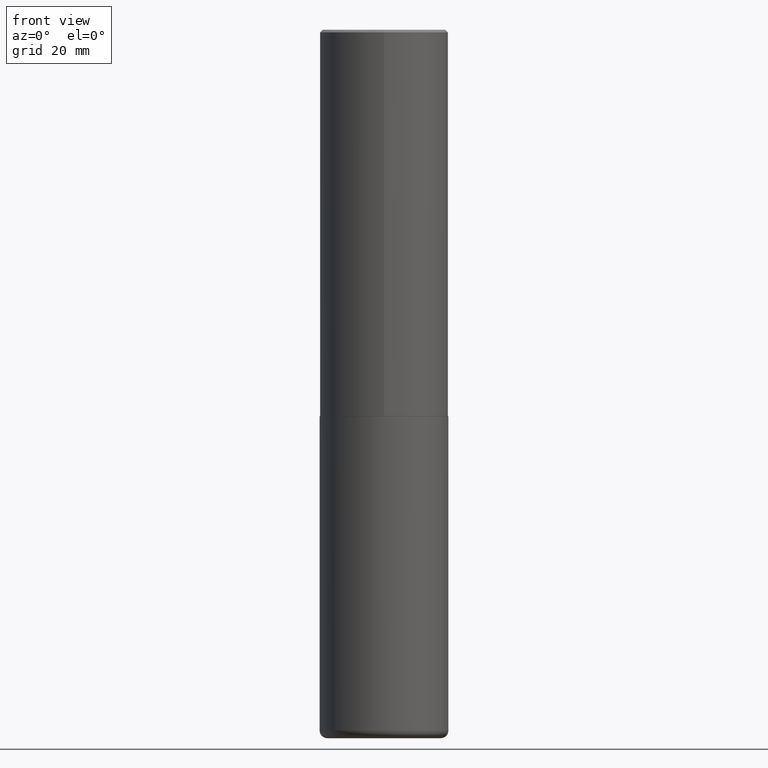
[diagram: clean part render]
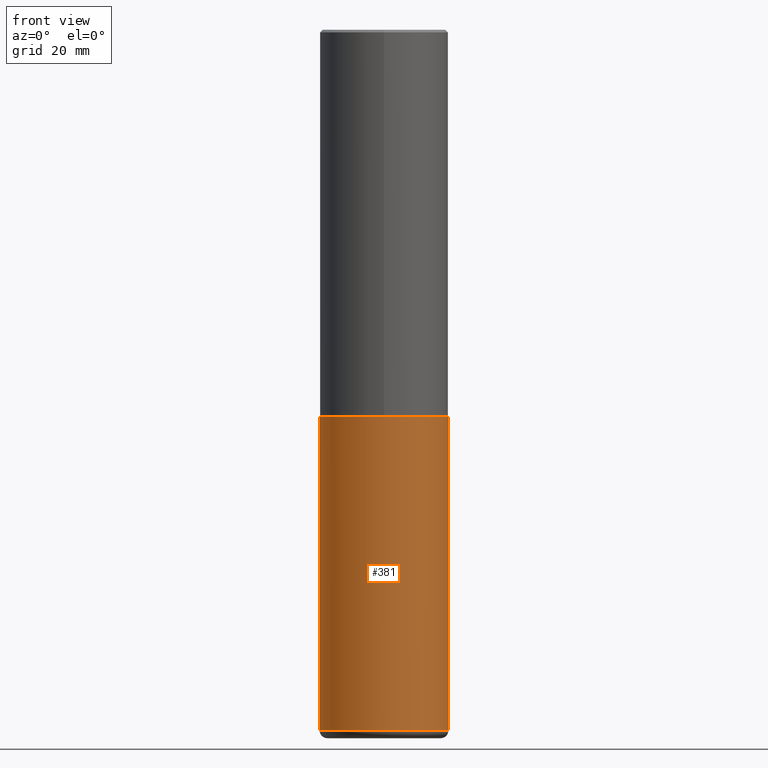
[diagram: same view with one face highlighted and labeled with its STEP entity id]
A machine part, front view. The second image highlights one B-rep face of the part: STEP entity #381.
In plain terms, the highlighted cylindrical surface (partial cylindrical patch) has radius 12.7 mm, axis along (-0, 0, 1).
Its self-contained STEP definition (entity closure, byte-faithful):
#22 = DIRECTION ( 'NONE',  ( -2.445468806185136877E-29, 3.491481338843145188E-15, 1.000000000000000000 ) ) ;
#26 = CIRCLE ( 'NONE', #255, 0.5000000000000001110 ) ;
#31 = CARTESIAN_POINT ( 'NONE',  ( -0.5000000000000002220, -1.544094480450621205E-14, -5.439999999999999503 ) ) ;
#35 = ORIENTED_EDGE ( 'NONE', *, *, #114, .F. ) ;
#55 = EDGE_CURVE ( 'NONE', #374, #196, #26, .T. ) ;
#61 = LINE ( 'NONE', #348, #68 ) ;
#63 = DIRECTION ( 'NONE',  ( -2.445468806185136877E-29, 3.491481338843145188E-15, 1.000000000000000000 ) ) ;
#68 = VECTOR ( 'NONE', #63, 39.37007874015748143 ) ;
#70 = ORIENTED_EDGE ( 'NONE', *, *, #282, .F. ) ;
#77 = LINE ( 'NONE', #232, #106 ) ;
#106 = VECTOR ( 'NONE', #22, 39.37007874015748143 ) ;
#114 = EDGE_CURVE ( 'NONE', #374, #199, #77, .T. ) ;
#130 = CARTESIAN_POINT ( 'NONE',  ( 0.000000000000000000, 0.000000000000000000, 0.000000000000000000 ) ) ;
#158 = DIRECTION ( 'NONE',  ( -2.445468806185136597E-29, 3.491481338843145583E-15, 1.000000000000000000 ) ) ;
#160 = CYLINDRICAL_SURFACE ( 'NONE', #227, 0.5000000000000000000 ) ;
#176 = CARTESIAN_POINT ( 'NONE',  ( 0.5000000000000002220, -2.248513982214985265E-14, -5.439999999999999503 ) ) ;
#190 = CARTESIAN_POINT ( 'NONE',  ( 0.5000000000000000000, -1.396592535537256813E-14, -2.999999999999999556 ) ) ;
#196 = VERTEX_POINT ( 'NONE', #176 ) ;
#199 = VERTEX_POINT ( 'NONE', #303 ) ;
#218 = CARTESIAN_POINT ( 'NONE',  ( 7.336406418555408669E-29, -1.047444401652943478E-14, -2.999999999999999556 ) ) ;
#223 = DIRECTION ( 'NONE',  ( 1.000000000000000000, -6.982962677686266711E-15, 4.876176775795935793E-29 ) ) ;
#224 = ORIENTED_EDGE ( 'NONE', *, *, #55, .T. ) ;
#227 = AXIS2_PLACEMENT_3D ( 'NONE', #130, #284, #223 ) ;
#232 = CARTESIAN_POINT ( 'NONE',  ( -0.5000000000000000000, 3.552713678800500929E-15, -2.459467545127452891E-29 ) ) ;
#247 = EDGE_LOOP ( 'NONE', ( #35, #224, #383, #70 ) ) ;
#253 = FACE_OUTER_BOUND ( 'NONE', #247, .T. ) ;
#255 = AXIS2_PLACEMENT_3D ( 'NONE', #371, #369, #361 ) ;
#273 = DIRECTION ( 'NONE',  ( 1.000000000000000000, -6.982962677686266711E-15, 0.000000000000000000 ) ) ;
#282 = EDGE_CURVE ( 'NONE', #199, #417, #401, .T. ) ;
#284 = DIRECTION ( 'NONE',  ( -2.445468806185136597E-29, 3.491481338843145583E-15, 1.000000000000000000 ) ) ;
#303 = CARTESIAN_POINT ( 'NONE',  ( -0.5000000000000000000, -1.118133757111757295E-14, -2.999999999999999556 ) ) ;
#348 = CARTESIAN_POINT ( 'NONE',  ( 0.5000000000000000000, -3.491481338843133355E-15, 2.438088387897967896E-29 ) ) ;
#361 = DIRECTION ( 'NONE',  ( 1.000000000000000000, -6.982962677686269077E-15, 0.000000000000000000 ) ) ;
#366 = EDGE_CURVE ( 'NONE', #196, #417, #61, .T. ) ;
#369 = DIRECTION ( 'NONE',  ( -2.445468806185136597E-29, 3.491481338843145583E-15, 1.000000000000000000 ) ) ;
#371 = CARTESIAN_POINT ( 'NONE',  ( 1.330335030564714425E-28, -1.899365848330671298E-14, -5.439999999999999503 ) ) ;
#374 = VERTEX_POINT ( 'NONE', #31 ) ;
#381 = ADVANCED_FACE ( 'NONE', ( #253 ), #160, .T. ) ;
#383 = ORIENTED_EDGE ( 'NONE', *, *, #366, .T. ) ;
#393 = AXIS2_PLACEMENT_3D ( 'NONE', #218, #158, #273 ) ;
#401 = CIRCLE ( 'NONE', #393, 0.5000000000000000000 ) ;
#417 = VERTEX_POINT ( 'NONE', #190 ) ;